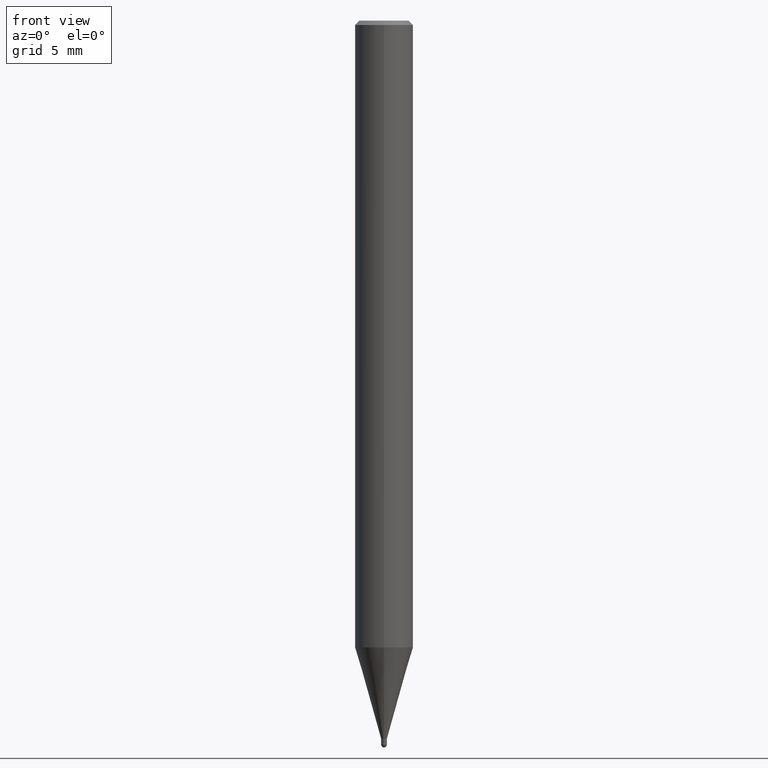
[diagram: clean part render]
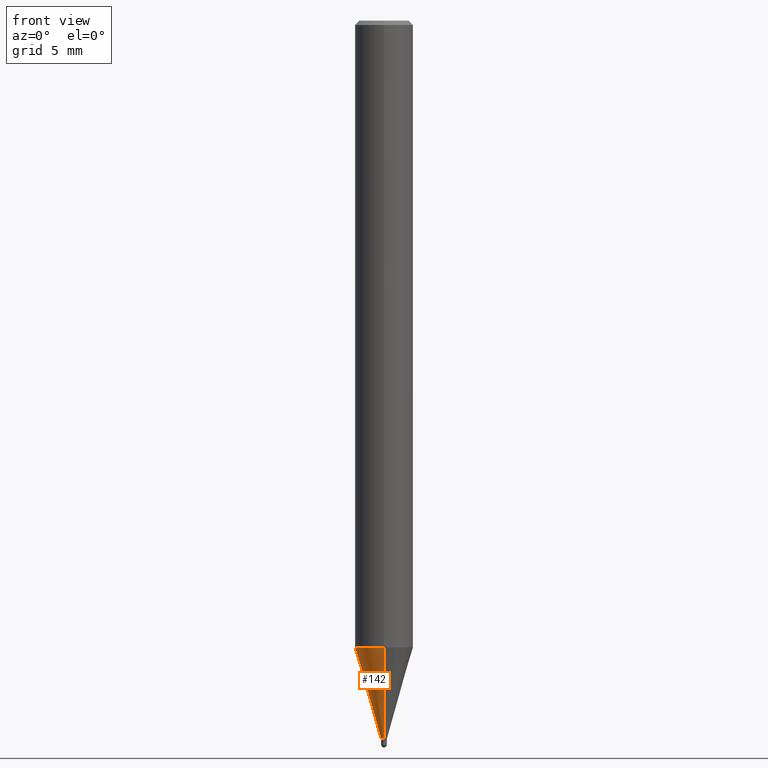
[diagram: same view with one face highlighted and labeled with its STEP entity id]
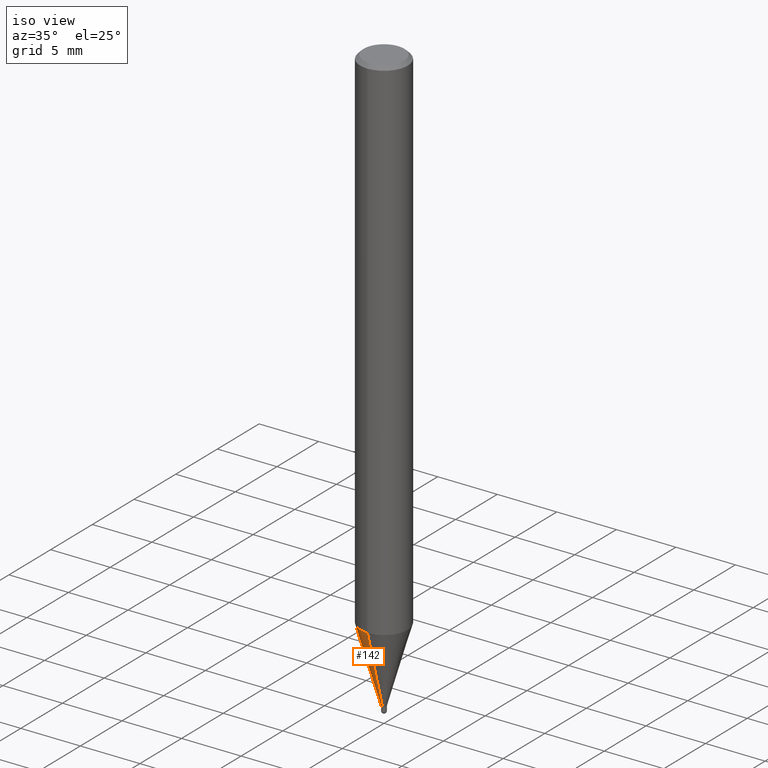
[diagram: same view with one face highlighted and labeled with its STEP entity id]
A machine part, front view. The second image highlights one B-rep face of the part: STEP entity #142.
A second angle (iso view) of the same face is appended — the face is thin or edge-on in the first view.
In plain terms, the highlighted conical surface has half-angle 16.001 deg.
Its self-contained STEP definition (entity closure, byte-faithful):
#86=VERTEX_POINT('',#211);
#88=EDGE_CURVE('',#86,#114,#213,.T.);
#94=EDGE_CURVE('',#86,#158,#219,.T.);
#106=EDGE_CURVE('',#180,#158,#232,.T.);
#114=VERTEX_POINT('',#241);
#142=ADVANCED_FACE('',(#275),#276,.T.);
#158=VERTEX_POINT('',#294);
#180=VERTEX_POINT('',#320);
#186=EDGE_CURVE('',#114,#180,#326,.T.);
#211=CARTESIAN_POINT('',(2.44860040446785E-017,-0.19995,-49.4));
#213=LINE('',#346,#347);
#219=CIRCLE('',#357,0.19995);
#232=LINE('',#375,#376);
#241=CARTESIAN_POINT('',(2.44915147732706E-016,-1.99995,-43.123));
#275=FACE_OUTER_BOUND('',#429,.T.);
#276=CONICAL_SURFACE('',#430,1.09995,0.279267285283396);
#294=CARTESIAN_POINT('',(0.0,0.19995,-49.4));
#320=CARTESIAN_POINT('',(0.0,1.99995,-43.123));
#326=CIRCLE('',#485,1.99995);
#346=CARTESIAN_POINT('',(1.34700575888692E-016,-1.09995,-46.2615));
#347=VECTOR('',#493,1.0);
#357=AXIS2_PLACEMENT_3D('',#498,#499,#500);
#375=CARTESIAN_POINT('',(-1.34700575888692E-016,1.09995,-46.2615));
#376=VECTOR('',#516,1.0);
#429=EDGE_LOOP('',(#575,#576,#577,#578));
#430=AXIS2_PLACEMENT_3D('',#579,#580,#581);
#485=AXIS2_PLACEMENT_3D('',#641,#642,#643);
#493=DIRECTION('',(3.37564449732947E-017,-0.275651394980357,0.961257670162056));
#498=CARTESIAN_POINT('',(0.0,0.0,-49.4));
#499=DIRECTION('',(0.0,0.0,-1.0));
#500=DIRECTION('',(0.0,1.0,0.0));
#516=DIRECTION('',(3.37564449732947E-017,-0.275651394980357,-0.961257670162056));
#575=ORIENTED_EDGE('',*,*,#106,.T.);
#576=ORIENTED_EDGE('',*,*,#94,.F.);
#577=ORIENTED_EDGE('',*,*,#88,.T.);
#578=ORIENTED_EDGE('',*,*,#186,.T.);
#579=CARTESIAN_POINT('',(0.0,0.0,-46.2615));
#580=DIRECTION('',(-0.0,-0.0,1.0));
#581=DIRECTION('',(0.0,1.0,0.0));
#641=CARTESIAN_POINT('',(0.0,0.0,-43.123));
#642=DIRECTION('',(0.0,0.0,-1.0));
#643=DIRECTION('',(0.0,1.0,0.0));